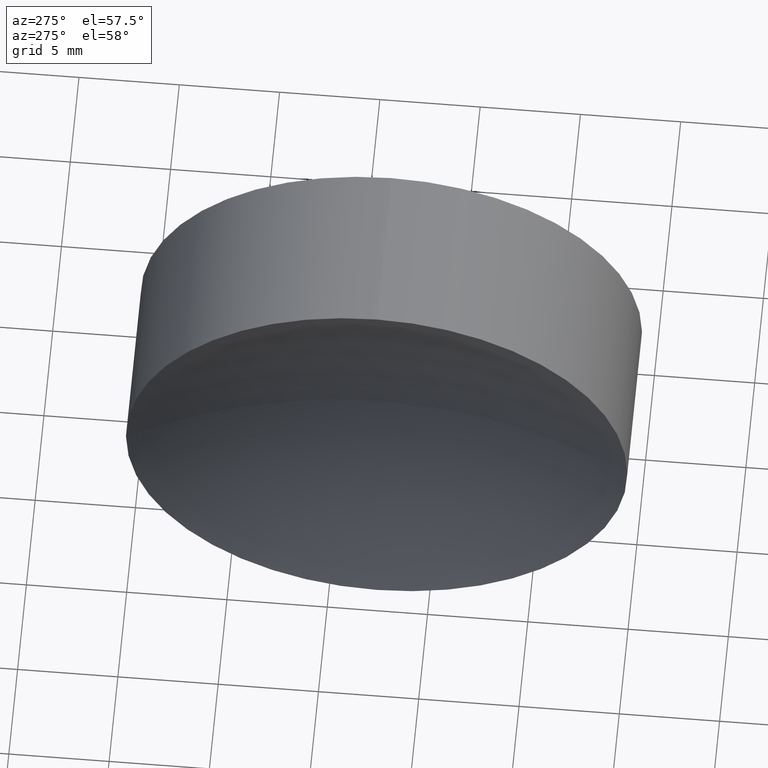
[diagram: clean part render]
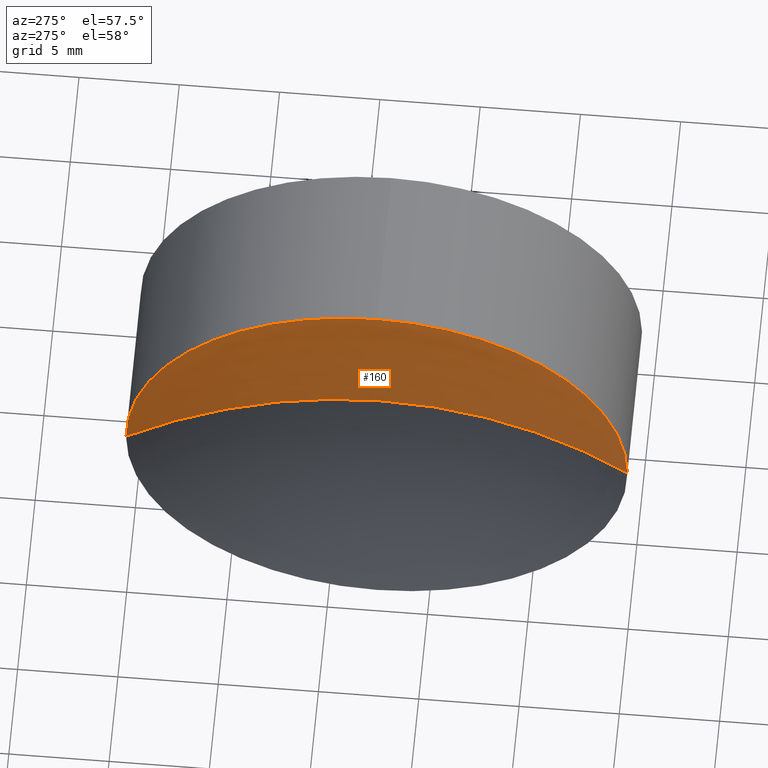
[diagram: same view with one face highlighted and labeled with its STEP entity id]
A machine part, auxiliary view. The second image highlights one B-rep face of the part: STEP entity #160.
In plain terms, the highlighted spherical surface has radius 26.16 mm.
Its self-contained STEP definition (entity closure, byte-faithful):
#12 = DIRECTION ( 'NONE',  ( 0.0000000000000000000, 1.224646799147353200E-016, -1.000000000000000000 ) ) ;
#14 = DIRECTION ( 'NONE',  ( -1.000000000000000000, -0.0000000000000000000, -0.0000000000000000000 ) ) ;
#15 = EDGE_LOOP ( 'NONE', ( #203, #218, #188, #25 ) ) ;
#25 = ORIENTED_EDGE ( 'NONE', *, *, #114, .T. ) ;
#26 = CIRCLE ( 'NONE', #113, 12.49999999999999600 ) ;
#27 = DIRECTION ( 'NONE',  ( 0.0000000000000000000, 0.0000000000000000000, 1.000000000000000000 ) ) ;
#42 = FACE_OUTER_BOUND ( 'NONE', #15, .T. ) ;
#46 = CIRCLE ( 'NONE', #125, 26.15999999999999700 ) ;
#55 = AXIS2_PLACEMENT_3D ( 'NONE', #206, #12, #186 ) ;
#63 = DIRECTION ( 'NONE',  ( 0.0000000000000000000, 0.0000000000000000000, 1.000000000000000000 ) ) ;
#69 = DIRECTION ( 'NONE',  ( 0.0000000000000000000, 0.0000000000000000000, -1.000000000000000000 ) ) ;
#78 = CARTESIAN_POINT ( 'NONE',  ( 55.87281597442936500, 45.11130143649369700, 0.0000000000000000000 ) ) ;
#83 = DIRECTION ( 'NONE',  ( 1.000000000000000000, 0.0000000000000000000, 0.0000000000000000000 ) ) ;
#90 = CARTESIAN_POINT ( 'NONE',  ( 55.87281597442936500, 32.61130143649369700, 12.49999999999999600 ) ) ;
#103 = CARTESIAN_POINT ( 'NONE',  ( 55.87281597442936500, 32.61130143649369700, 0.0000000000000000000 ) ) ;
#111 = CARTESIAN_POINT ( 'NONE',  ( 59.05248525444187600, 32.61130143649370400, 0.0000000000000000000 ) ) ;
#113 = AXIS2_PLACEMENT_3D ( 'NONE', #103, #14, #63 ) ;
#114 = EDGE_CURVE ( 'NONE', #159, #214, #26, .T. ) ;
#117 = CARTESIAN_POINT ( 'NONE',  ( 32.89248525444188000, 32.61130143649370400, 0.0000000000000000000 ) ) ;
#118 = EDGE_CURVE ( 'NONE', #224, #214, #46, .T. ) ;
#125 = AXIS2_PLACEMENT_3D ( 'NONE', #117, #27, #83 ) ;
#136 = AXIS2_PLACEMENT_3D ( 'NONE', #141, #150, #216 ) ;
#140 = AXIS2_PLACEMENT_3D ( 'NONE', #175, #69, #198 ) ;
#141 = CARTESIAN_POINT ( 'NONE',  ( 55.87281597442936500, 32.61130143649369700, 0.0000000000000000000 ) ) ;
#149 = CARTESIAN_POINT ( 'NONE',  ( 55.87281597442936500, 20.11130143649371100, -1.530808498934190300E-015 ) ) ;
#150 = DIRECTION ( 'NONE',  ( -1.000000000000000000, -0.0000000000000000000, -0.0000000000000000000 ) ) ;
#159 = VERTEX_POINT ( 'NONE', #90 ) ;
#160 = ADVANCED_FACE ( 'NONE', ( #42 ), #219, .F. ) ;
#171 = CIRCLE ( 'NONE', #136, 12.49999999999999600 ) ;
#173 = EDGE_CURVE ( 'NONE', #179, #159, #171, .T. ) ;
#175 = CARTESIAN_POINT ( 'NONE',  ( 32.89248525444188000, 32.61130143649370400, 0.0000000000000000000 ) ) ;
#179 = VERTEX_POINT ( 'NONE', #149 ) ;
#186 = DIRECTION ( 'NONE',  ( 0.0000000000000000000, 1.000000000000000000, 1.224646799147353200E-016 ) ) ;
#188 = ORIENTED_EDGE ( 'NONE', *, *, #173, .T. ) ;
#198 = DIRECTION ( 'NONE',  ( 0.0000000000000000000, 1.000000000000000000, 0.0000000000000000000 ) ) ;
#203 = ORIENTED_EDGE ( 'NONE', *, *, #118, .F. ) ;
#206 = CARTESIAN_POINT ( 'NONE',  ( 32.89248525444188000, 32.61130143649370400, 0.0000000000000000000 ) ) ;
#213 = EDGE_CURVE ( 'NONE', #224, #179, #226, .T. ) ;
#214 = VERTEX_POINT ( 'NONE', #78 ) ;
#216 = DIRECTION ( 'NONE',  ( 0.0000000000000000000, 0.0000000000000000000, 1.000000000000000000 ) ) ;
#218 = ORIENTED_EDGE ( 'NONE', *, *, #213, .T. ) ;
#219 = SPHERICAL_SURFACE ( 'NONE', #140, 26.15999999999999700 ) ;
#224 = VERTEX_POINT ( 'NONE', #111 ) ;
#226 = CIRCLE ( 'NONE', #55, 26.15999999999999700 ) ;